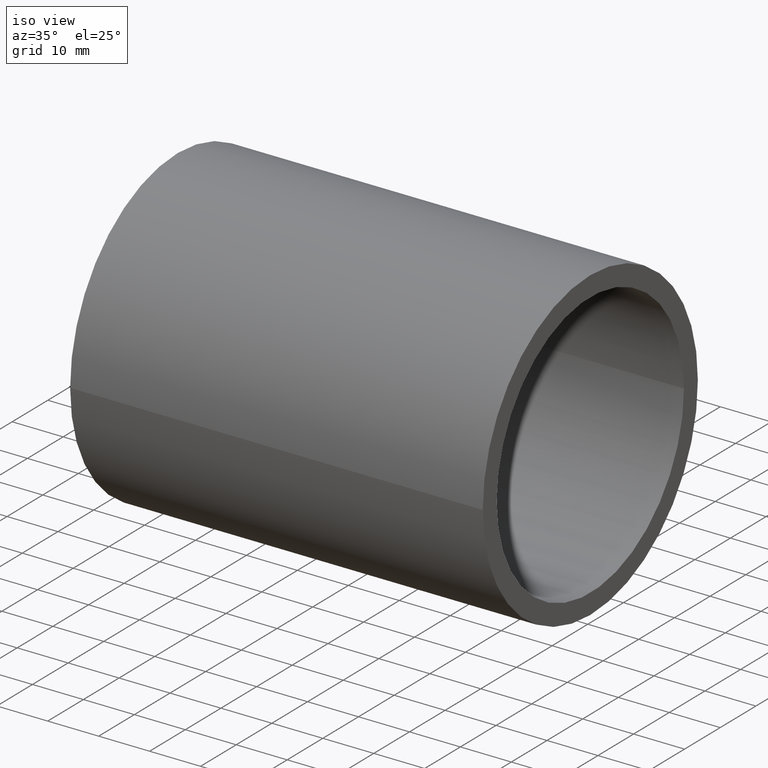
[diagram: clean part render]
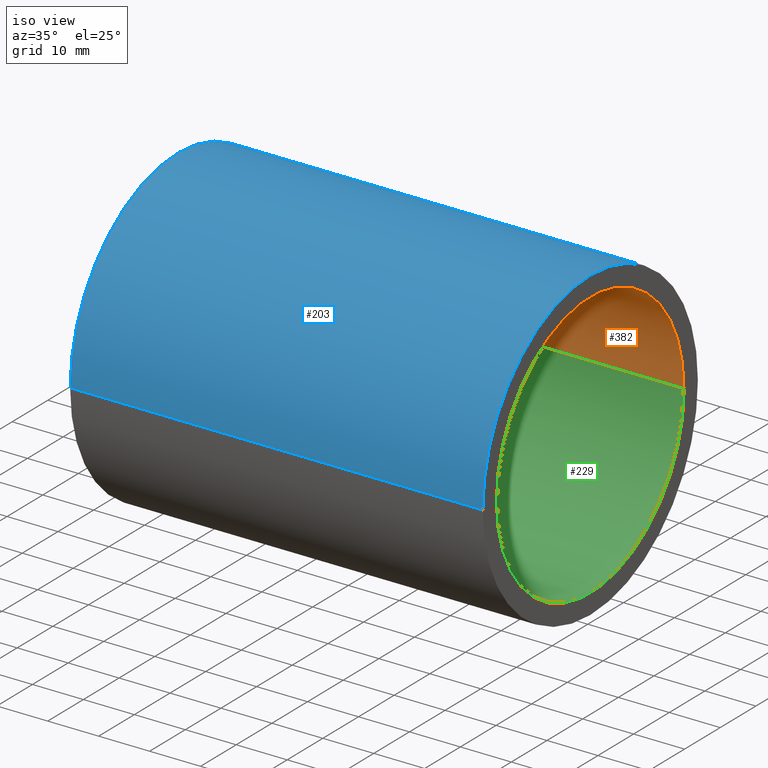
[diagram: same view with three faces highlighted in distinct colors, each labeled with its STEP entity id]
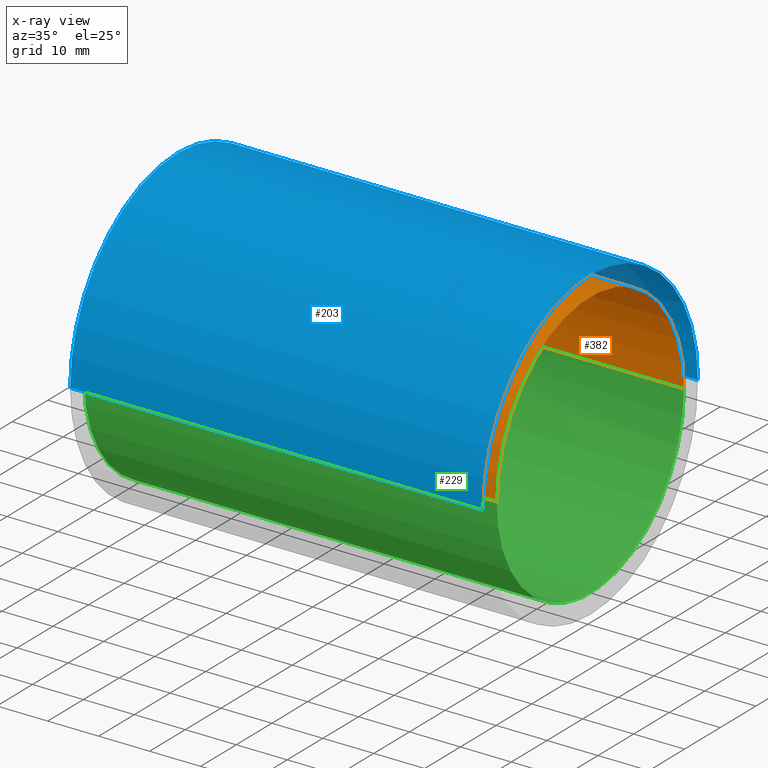
[diagram: x-ray of the same camera — body ghosted, the three highlighted faces saturated]
A machine part, iso view with three faces highlighted in distinct colors.
The next image is the same camera in x-ray (body ghosted, the three faces saturated) — at least one of them is partly hidden behind the body in this view.
Their STEP definitions:

[orange] entity #382 — the highlighted cylindrical surface (partial cylindrical patch) has radius 26.25 mm, axis along (1, 0, -0).
#3 = CARTESIAN_POINT ( 'NONE',  ( 40.49999999999999289, 26.25000000000001421, 0.000000000000000000 ) ) ;
#5 = CARTESIAN_POINT ( 'NONE',  ( 3.107388716256044514, 25.34594975676170847, 6.830444350759405481 ) ) ;
#8 = VERTEX_POINT ( 'NONE', #152 ) ;
#11 = CARTESIAN_POINT ( 'NONE',  ( 3.971717859397048134, 25.46659019787804468, 6.366690093564684183 ) ) ;
#15 = CARTESIAN_POINT ( 'NONE',  ( 4.949845040958535947, 25.63745304020012483, 5.639931906123011984 ) ) ;
#16 = CARTESIAN_POINT ( 'NONE',  ( 7.487977033579295671, 26.24655705374320647, 0.4912461484889982244 ) ) ;
#20 = CARTESIAN_POINT ( 'NONE',  ( 7.500000000000000000, 26.25000000000000355, -3.511471062450945916E-20 ) ) ;
#25 = EDGE_CURVE ( 'NONE', #238, #443, #404, .T. ) ;
#27 = CARTESIAN_POINT ( 'NONE',  ( -40.50000000000000711, 26.24999999999998934, 0.000000000000000000 ) ) ;
#31 = CARTESIAN_POINT ( 'NONE',  ( 9.184851921108029881E-16, 25.15576474687263797, 7.500000000000000000 ) ) ;
#35 = CARTESIAN_POINT ( 'NONE',  ( -0.4922419818676975201, 25.15576474687263442, 7.499999999999996447 ) ) ;
#39 = CYLINDRICAL_SURFACE ( 'NONE', #75, 26.25000000000000000 ) ;
#45 = CARTESIAN_POINT ( 'NONE',  ( 5.652275227240287414, 25.78072849040628611, 4.953963438185938983 ) ) ;
#51 = AXIS2_PLACEMENT_3D ( 'NONE', #164, #487, #412 ) ;
#53 = CARTESIAN_POINT ( 'NONE',  ( 4.571945044723190854, 25.56718040674281767, 5.950387915357894464 ) ) ;
#65 = CARTESIAN_POINT ( 'NONE',  ( -7.500000000000002665, 26.25000000000000711, 0.4984821498441855403 ) ) ;
#66 = VERTEX_POINT ( 'NONE', #179 ) ;
#71 = CARTESIAN_POINT ( 'NONE',  ( -3.327989891935563271, 25.37099409258889082, 6.738906710336570072 ) ) ;
#75 = AXIS2_PLACEMENT_3D ( 'NONE', #254, #407, #252 ) ;
#76 = EDGE_CURVE ( 'NONE', #499, #238, #91, .T. ) ;
#91 = B_SPLINE_CURVE_WITH_KNOTS ( 'NONE', 3,
 ( #206, #298, #501, #363, #370, #5, #493, #490, #11, #175, #53, #15, #328, #45, #129, #172, #250, #125, #134, #288, #331, #16, #209, #498 ),
 .UNSPECIFIED., .F., .F.,
 ( 4, 2, 2, 2, 2, 2, 2, 2, 2, 2, 2, 4 ),
 ( 0.01178926207537836848, 0.01326208531383623462, 0.01473490855229410076, 0.01547132017152303557, 0.01620773179075197037, 0.01694414340998090518, 0.01768055502920983652, 0.01915337826766770959, 0.02062620150612557574, 0.02209902474458345228, 0.02283543636381238362, 0.02357184798304132189 ),
 .UNSPECIFIED. ) ;
#98 = VECTOR ( 'NONE', #402, 1000.000000000000000 ) ;
#115 = CARTESIAN_POINT ( 'NONE',  ( -2.651657080710897230, 25.29414193850076131, 7.019851125143388160 ) ) ;
#117 = CARTESIAN_POINT ( 'NONE',  ( -0.9808088379908341814, 25.17022427966362486, 7.452009104841418541 ) ) ;
#118 = EDGE_LOOP ( 'NONE', ( #350, #374, #401, #170, #228, #173, #431 ) ) ;
#119 = CARTESIAN_POINT ( 'NONE',  ( -7.018475470088969104, 26.11633987092977449, 2.655443974424664066 ) ) ;
#125 = CARTESIAN_POINT ( 'NONE',  ( 7.114336110951199998, 26.14179627227647273, 2.424028184464290803 ) ) ;
#127 = DIRECTION ( 'NONE',  ( 1.000000000000000000, 3.061616997868382648E-16, -0.000000000000000000 ) ) ;
#129 = CARTESIAN_POINT ( 'NONE',  ( 5.960626149216632363, 25.85096129184256597, 4.578074141451656587 ) ) ;
#130 = FACE_OUTER_BOUND ( 'NONE', #118, .T. ) ;
#134 = CARTESIAN_POINT ( 'NONE',  ( 7.257158362495001569, 26.18148585191245559, 1.956305712048990619 ) ) ;
#151 = CARTESIAN_POINT ( 'NONE',  ( -1.950174968047167612, 25.23015299990416338, 7.246202063215121392 ) ) ;
#152 = CARTESIAN_POINT ( 'NONE',  ( -40.49999999999999289, -26.25000000000000711, 3.214697847761803556E-15 ) ) ;
#154 = CARTESIAN_POINT ( 'NONE',  ( -4.579823838683608983, 25.56606953501224311, 5.959714509959599837 ) ) ;
#159 = CARTESIAN_POINT ( 'NONE',  ( 40.50000000000000711, -26.24999999999998579, 3.214697847761801978E-15 ) ) ;
#161 = CARTESIAN_POINT ( 'NONE',  ( -5.472392848530915899, 25.74356638495870797, 5.134404946341746268 ) ) ;
#164 = CARTESIAN_POINT ( 'NONE',  ( -40.50000000000000000, -1.022580077288039749E-14, 0.000000000000000000 ) ) ;
#170 = ORIENTED_EDGE ( 'NONE', *, *, #272, .T. ) ;
#172 = CARTESIAN_POINT ( 'NONE',  ( 6.503291595215035414, 25.98145371594922892, 3.767628612663263876 ) ) ;
#173 = ORIENTED_EDGE ( 'NONE', *, *, #25, .T. ) ;
#175 = CARTESIAN_POINT ( 'NONE',  ( 4.376306223494449199, 25.53281672111011957, 6.095673001429120497 ) ) ;
#176 = AXIS2_PLACEMENT_3D ( 'NONE', #237, #394, #318 ) ;
#179 = CARTESIAN_POINT ( 'NONE',  ( -7.500000000000000000, 26.25000000000000000, -2.472637286832563698E-17 ) ) ;
#181 = DIRECTION ( 'NONE',  ( 1.000000000000000000, 3.061616997868382648E-16, -0.000000000000000000 ) ) ;
#192 = CARTESIAN_POINT ( 'NONE',  ( -1.708101661654081838, 25.21252738946488492, 7.307085269263294158 ) ) ;
#197 = CARTESIAN_POINT ( 'NONE',  ( -6.735174713920692113, 26.04115818748732636, 3.336007205501596573 ) ) ;
#206 = CARTESIAN_POINT ( 'NONE',  ( 9.184851921108029881E-16, 25.15576474687263797, 7.500000000000000000 ) ) ;
#209 = CARTESIAN_POINT ( 'NONE',  ( 7.500000000000000888, 26.25000000000000711, 0.2454883167530756138 ) ) ;
#217 = CARTESIAN_POINT ( 'NONE',  ( 9.184851921108029881E-16, 25.15576474687263797, 7.500000000000000000 ) ) ;
#226 = CARTESIAN_POINT ( 'NONE',  ( -40.50000000000000711, 26.24999999999998934, 0.000000000000000000 ) ) ;
#228 = ORIENTED_EDGE ( 'NONE', *, *, #76, .T. ) ;
#237 = CARTESIAN_POINT ( 'NONE',  ( 40.50000000000000000, 1.457329690985350156E-14, 0.000000000000000000 ) ) ;
#238 = VERTEX_POINT ( 'NONE', #20 ) ;
#244 = LINE ( 'NONE', #362, #98 ) ;
#250 = CARTESIAN_POINT ( 'NONE',  ( 6.738835609049517394, 26.04211280613417401, 3.328330748718893783 ) ) ;
#252 = DIRECTION ( 'NONE',  ( -2.643388153869420311E-16, 1.000000000000000000, 0.000000000000000000 ) ) ;
#254 = CARTESIAN_POINT ( 'NONE',  ( -40.50000000000000000, -1.022580077288039749E-14, 0.000000000000000000 ) ) ;
#271 = VERTEX_POINT ( 'NONE', #159 ) ;
#272 = EDGE_CURVE ( 'NONE', #66, #499, #379, .T. ) ;
#273 = CARTESIAN_POINT ( 'NONE',  ( -3.760398422462146506, 25.43206089508599632, 6.507871167896754905 ) ) ;
#275 = CARTESIAN_POINT ( 'NONE',  ( -2.421249021666196377, 25.27092963896449618, 7.102688217993333275 ) ) ;
#278 = CARTESIAN_POINT ( 'NONE',  ( -6.095874634240917800, 25.88348345119200999, 4.376096670775003084 ) ) ;
#281 = CIRCLE ( 'NONE', #51, 26.25000000000000000 ) ;
#288 = CARTESIAN_POINT ( 'NONE',  ( 7.402472689468249989, 26.22226039831832622, 1.230555958097135028 ) ) ;
#298 = CARTESIAN_POINT ( 'NONE',  ( 0.4919632290495392080, 25.15576474687263442, 7.500000000000000000 ) ) ;
#316 = CARTESIAN_POINT ( 'NONE',  ( -4.955966953346995219, 25.63709451859085675, 5.650237351122170182 ) ) ;
#318 = DIRECTION ( 'NONE',  ( 2.643388153869420311E-16, -1.000000000000000000, 0.000000000000000000 ) ) ;
#328 = CARTESIAN_POINT ( 'NONE',  ( 5.132964830283328617, 25.67354941397504930, 5.473816246359916704 ) ) ;
#329 = VERTEX_POINT ( 'NONE', #27 ) ;
#331 = CARTESIAN_POINT ( 'NONE',  ( 7.439369639669211054, 26.23273103883045110, 0.9833118519494521426 ) ) ;
#333 = CARTESIAN_POINT ( 'NONE',  ( -40.50000000000000711, 26.24999999999998934, 0.000000000000000000 ) ) ;
#348 = EDGE_CURVE ( 'NONE', #271, #443, #396, .T. ) ;
#350 = ORIENTED_EDGE ( 'NONE', *, *, #439, .F. ) ;
#352 = CARTESIAN_POINT ( 'NONE',  ( -7.500000000000000000, 26.25000000000000000, -2.472637286832563698E-17 ) ) ;
#355 = VECTOR ( 'NONE', #181, 1000.000000000000000 ) ;
#358 = CARTESIAN_POINT ( 'NONE',  ( -7.102726071837865973, 26.13917417762349871, 2.421224650953273994 ) ) ;
#362 = CARTESIAN_POINT ( 'NONE',  ( -40.49999999999999289, -26.25000000000001066, 3.214697847761801978E-15 ) ) ;
#363 = CARTESIAN_POINT ( 'NONE',  ( 1.955503778285107686, 25.22707080590904383, 7.257238911030132300 ) ) ;
#370 = CARTESIAN_POINT ( 'NONE',  ( 2.424162657630228868, 25.26824652294144258, 7.114546651775996544 ) ) ;
#374 = ORIENTED_EDGE ( 'NONE', *, *, #403, .T. ) ;
#375 = LINE ( 'NONE', #226, #355 ) ;
#379 = B_SPLINE_CURVE_WITH_KNOTS ( 'NONE', 3,
 ( #352, #65, #521, #485, #516, #358, #119, #197, #440, #278, #472, #524, #161, #316, #154, #273, #71, #115, #275, #151, #192, #117, #35, #31 ),
 .UNSPECIFIED., .F., .F.,
 ( 4, 2, 2, 2, 2, 2, 2, 2, 2, 2, 2, 4 ),
 ( 2.401109424688869196E-20, 0.001473657759422297361, 0.002210486639133445608, 0.002947315518844594289, 0.004420973278266892084, 0.005157802157978041632, 0.005894631037689191180, 0.007368288797111485940, 0.008841946556533780699, 0.009578775436244926778, 0.01031560431595607459, 0.01178926207537836848 ),
 .UNSPECIFIED. ) ;
#382 = ADVANCED_FACE ( 'NONE', ( #130 ), #39, .F. ) ;
#394 = DIRECTION ( 'NONE',  ( -1.000000000000000000, -3.061616997868382648E-16, 0.000000000000000000 ) ) ;
#396 = CIRCLE ( 'NONE', #176, 26.25000000000000000 ) ;
#401 = ORIENTED_EDGE ( 'NONE', *, *, #527, .T. ) ;
#402 = DIRECTION ( 'NONE',  ( 1.000000000000000000, 3.061616997868382648E-16, -0.000000000000000000 ) ) ;
#403 = EDGE_CURVE ( 'NONE', #8, #329, #281, .T. ) ;
#404 = LINE ( 'NONE', #333, #477 ) ;
#407 = DIRECTION ( 'NONE',  ( 1.000000000000000000, 3.061616997868382648E-16, -0.000000000000000000 ) ) ;
#412 = DIRECTION ( 'NONE',  ( 2.643388153869420311E-16, -1.000000000000000000, 0.000000000000000000 ) ) ;
#431 = ORIENTED_EDGE ( 'NONE', *, *, #348, .F. ) ;
#439 = EDGE_CURVE ( 'NONE', #8, #271, #244, .T. ) ;
#440 = CARTESIAN_POINT ( 'NONE',  ( -6.504407235292181788, 25.98172291303094639, 3.765942781147678442 ) ) ;
#443 = VERTEX_POINT ( 'NONE', #3 ) ;
#472 = CARTESIAN_POINT ( 'NONE',  ( -5.948343698780419686, 25.84902718059208127, 4.574653448903553077 ) ) ;
#477 = VECTOR ( 'NONE', #127, 1000.000000000000000 ) ;
#485 = CARTESIAN_POINT ( 'NONE',  ( -7.306580559343885284, 26.19535245757309383, 1.709997413816759515 ) ) ;
#487 = DIRECTION ( 'NONE',  ( -1.000000000000000000, -3.061616997868382648E-16, 0.000000000000000000 ) ) ;
#490 = CARTESIAN_POINT ( 'NONE',  ( 3.762768565915440178, 25.43472580024818441, 6.492422099545622771 ) ) ;
#493 = CARTESIAN_POINT ( 'NONE',  ( 3.331220906173984364, 25.37447303844751190, 6.724056757165206122 ) ) ;
#498 = CARTESIAN_POINT ( 'NONE',  ( 7.500000000000000000, 26.25000000000000355, -3.511471062450945916E-20 ) ) ;
#499 = VERTEX_POINT ( 'NONE', #217 ) ;
#501 = CARTESIAN_POINT ( 'NONE',  ( 0.9917866897664961989, 25.17071209277677823, 7.450360447700447253 ) ) ;
#516 = CARTESIAN_POINT ( 'NONE',  ( -7.246680038039598593, 26.17865696727574587, 1.948505809133644684 ) ) ;
#521 = CARTESIAN_POINT ( 'NONE',  ( -7.450801712308027902, 26.23582340581914352, 0.9881276970289141204 ) ) ;
#524 = CARTESIAN_POINT ( 'NONE',  ( -5.636506284883211926, 25.77905383298028497, 4.953790855179288855 ) ) ;
#527 = EDGE_CURVE ( 'NONE', #329, #66, #375, .T. ) ;

[blue] entity #203 — the highlighted cylindrical surface (partial cylindrical patch) has radius 30.15 mm, axis along (1, 0, -0).
#10 = CARTESIAN_POINT ( 'NONE',  ( 7.402591408172828125, 30.12588033472438553, 1.229742287648331933 ) ) ;
#24 = CARTESIAN_POINT ( 'NONE',  ( -7.500000000000004441, 30.15000000000000213, 0.4977798491282845461 ) ) ;
#26 = CARTESIAN_POINT ( 'NONE',  ( -7.019421004381487528, 30.03391983532719678, 2.652946144464616740 ) ) ;
#29 = EDGE_CURVE ( 'NONE', #414, #38, #406, .T. ) ;
#32 = B_SPLINE_CURVE_WITH_KNOTS ( 'NONE', 3,
 ( #268, #24, #182, #64, #419, #189, #26, #514, #147, #230, #386, #137, #460, #507, #303, #340, #280, #190, #311, #37, #347, #437, #78, #239 ),
 .UNSPECIFIED., .F., .F.,
 ( 4, 2, 2, 2, 2, 2, 2, 2, 2, 2, 2, 4 ),
 ( 6.055894841786311079E-19, 0.001471713851614921088, 0.002207570777422380656, 0.002943427703229840008, 0.004415141554844758710, 0.005150998480652219796, 0.005886855406459680015, 0.007358569258074600453, 0.008830283109689519155, 0.009566140035496977639, 0.01030199696130443612, 0.01177371081291935309 ),
 .UNSPECIFIED. ) ;
#37 = CARTESIAN_POINT ( 'NONE',  ( -1.948475690276917360, 29.26625992275815236, 7.246652333023240189 ) ) ;
#38 = VERTEX_POINT ( 'NONE', #408 ) ;
#42 = DIRECTION ( 'NONE',  ( -1.000000000000000000, -3.061616997868382648E-16, 0.000000000000000000 ) ) ;
#46 = CARTESIAN_POINT ( 'NONE',  ( 0.4912365799460749471, 29.20226874747919510, 7.499999999999998224 ) ) ;
#48 = CARTESIAN_POINT ( 'NONE',  ( 40.49999999999999289, 30.15000000000001634, 0.000000000000000000 ) ) ;
#49 = DIRECTION ( 'NONE',  ( 1.000000000000000000, 3.061616997868382648E-16, -0.000000000000000000 ) ) ;
#58 = CARTESIAN_POINT ( 'NONE',  ( -40.50000000000000711, 30.14999999999998792, 0.000000000000000000 ) ) ;
#64 = CARTESIAN_POINT ( 'NONE',  ( -7.307030583747838648, 30.10254195543210898, 1.708038133804885339 ) ) ;
#70 = ORIENTED_EDGE ( 'NONE', *, *, #178, .F. ) ;
#78 = CARTESIAN_POINT ( 'NONE',  ( -0.4914981277863440523, 29.20226874747919510, 7.499999999999998224 ) ) ;
#83 = CARTESIAN_POINT ( 'NONE',  ( 2.421837460762274574, 29.29902194155838657, 7.115302828821279846 ) ) ;
#84 = EDGE_CURVE ( 'NONE', #414, #491, #285, .T. ) ;
#92 = CARTESIAN_POINT ( 'NONE',  ( 7.500000000000000888, 30.15000000000000568, 0.2452510371018872537 ) ) ;
#95 = CARTESIAN_POINT ( 'NONE',  ( 4.375047410893810884, 29.52750182852797778, 6.096583708591910344 ) ) ;
#102 = CYLINDRICAL_SURFACE ( 'NONE', #497, 30.14999999999999858 ) ;
#126 = CARTESIAN_POINT ( 'NONE',  ( 0.9903514444054488663, 29.21509827629692069, 7.450530917942700171 ) ) ;
#128 = CARTESIAN_POINT ( 'NONE',  ( 5.961464549158439041, 29.80337492193547178, 4.576993505707772414 ) ) ;
#137 = CARTESIAN_POINT ( 'NONE',  ( -5.637319221159425631, 29.74102230381066647, 4.952887269354030231 ) ) ;
#140 = EDGE_CURVE ( 'NONE', #491, #361, #425, .T. ) ;
#143 = DIRECTION ( 'NONE',  ( 2.301457347896261609E-16, -1.000000000000000000, 0.000000000000000000 ) ) ;
#145 = DIRECTION ( 'NONE',  ( 1.000000000000000000, 3.061616997868382648E-16, -0.000000000000000000 ) ) ;
#147 = CARTESIAN_POINT ( 'NONE',  ( -6.505634617147438625, 29.91696588354454533, 3.763845714519531871 ) ) ;
#156 = VECTOR ( 'NONE', #461, 1000.000000000000000 ) ;
#174 = CARTESIAN_POINT ( 'NONE',  ( 7.439412463744210058, 30.13497641939341065, 0.9829913012394488891 ) ) ;
#177 = CARTESIAN_POINT ( 'NONE',  ( 3.104462180835961593, 29.36594810224306684, 6.831765681418321634 ) ) ;
#178 = EDGE_CURVE ( 'NONE', #38, #315, #186, .T. ) ;
#182 = CARTESIAN_POINT ( 'NONE',  ( -7.450937842631350172, 30.13768935472081267, 0.9868566961194560339 ) ) ;
#186 = LINE ( 'NONE', #512, #373 ) ;
#188 = EDGE_CURVE ( 'NONE', #296, #361, #429, .T. ) ;
#189 = CARTESIAN_POINT ( 'NONE',  ( -7.103575669927350233, 30.05375883820808980, 2.418709507118506519 ) ) ;
#190 = CARTESIAN_POINT ( 'NONE',  ( -2.649571510705720723, 29.32136355497509683, 7.020640179147966897 ) ) ;
#199 = AXIS2_PLACEMENT_3D ( 'NONE', #336, #337, #143 ) ;
#202 = CARTESIAN_POINT ( 'NONE',  ( 6.739564159734181992, 29.96933153080855305, 3.326924869746755054 ) ) ;
#203 = ADVANCED_FACE ( 'NONE', ( #300 ), #102, .T. ) ;
#205 = CARTESIAN_POINT ( 'NONE',  ( 3.970098787717640132, 29.47022240788812653, 6.367706681309988070 ) ) ;
#210 = CARTESIAN_POINT ( 'NONE',  ( 1.953505448120328447, 29.26358410800164478, 7.257756086203244195 ) ) ;
#212 = CARTESIAN_POINT ( 'NONE',  ( 6.504087766042523810, 29.91663842805477103, 3.766267575966940839 ) ) ;
#213 = CARTESIAN_POINT ( 'NONE',  ( -40.50000000000000000, -1.022580077288039749E-14, 0.000000000000000000 ) ) ;
#230 = CARTESIAN_POINT ( 'NONE',  ( -6.097133101349402118, 29.83169117787166869, 4.374348183222612541 ) ) ;
#239 = CARTESIAN_POINT ( 'NONE',  ( 9.184852138581204232E-16, 29.20226874747919510, 7.500000000000000000 ) ) ;
#243 = VERTEX_POINT ( 'NONE', #426 ) ;
#246 = CARTESIAN_POINT ( 'NONE',  ( 5.131943926652757781, 29.64928625183236122, 5.474803640274430450 ) ) ;
#258 = DIRECTION ( 'NONE',  ( -2.301457347896261609E-16, 1.000000000000000000, 0.000000000000000000 ) ) ;
#266 = EDGE_CURVE ( 'NONE', #315, #243, #32, .T. ) ;
#268 = CARTESIAN_POINT ( 'NONE',  ( -7.500000000000000000, 30.14999999999999858, 6.235175805712512231E-16 ) ) ;
#280 = CARTESIAN_POINT ( 'NONE',  ( -3.326114416452000899, 29.38765154349772502, 6.739839297068670021 ) ) ;
#285 = LINE ( 'NONE', #291, #474 ) ;
#287 = CARTESIAN_POINT ( 'NONE',  ( 3.760902486803406219, 29.44267094097436299, 6.493515011038175189 ) ) ;
#289 = CARTESIAN_POINT ( 'NONE',  ( 4.948790345394321832, 29.61803894572666707, 5.640858275763892316 ) ) ;
#291 = CARTESIAN_POINT ( 'NONE',  ( -40.49999999999999289, -30.15000000000000924, 3.692310099429270397E-15 ) ) ;
#296 = VERTEX_POINT ( 'NONE', #388 ) ;
#300 = FACE_OUTER_BOUND ( 'NONE', #411, .T. ) ;
#303 = CARTESIAN_POINT ( 'NONE',  ( -4.579325986222701594, 29.55635505909321026, 5.960105699942596758 ) ) ;
#305 = CARTESIAN_POINT ( 'NONE',  ( -40.50000000000000000, -1.022580077288039749E-14, 0.000000000000000000 ) ) ;
#311 = CARTESIAN_POINT ( 'NONE',  ( -2.419201632628013687, 29.30136428376927071, 7.103378844747139986 ) ) ;
#315 = VERTEX_POINT ( 'NONE', #397 ) ;
#323 = AXIS2_PLACEMENT_3D ( 'NONE', #213, #42, #376 ) ;
#330 = CARTESIAN_POINT ( 'NONE',  ( 7.488000471204768971, 30.14700809447676022, 0.4908957600777332786 ) ) ;
#336 = CARTESIAN_POINT ( 'NONE',  ( 40.50000000000000000, 1.457329690985350156E-14, 0.000000000000000000 ) ) ;
#337 = DIRECTION ( 'NONE',  ( -1.000000000000000000, -3.061616997868382648E-16, 0.000000000000000000 ) ) ;
#340 = CARTESIAN_POINT ( 'NONE',  ( -3.759673113302224756, 29.44049999252692018, 6.508298128058910059 ) ) ;
#347 = CARTESIAN_POINT ( 'NONE',  ( -1.706680834759862098, 29.25109693381486409, 7.307414262249330328 ) ) ;
#356 = ORIENTED_EDGE ( 'NONE', *, *, #188, .F. ) ;
#360 = CARTESIAN_POINT ( 'NONE',  ( 7.257696053612322729, 30.09049480400307175, 1.954060028484029488 ) ) ;
#361 = VERTEX_POINT ( 'NONE', #48 ) ;
#366 = EDGE_CURVE ( 'NONE', #243, #296, #475, .T. ) ;
#367 = CARTESIAN_POINT ( 'NONE',  ( 7.115179820092397023, 30.05602919902415238, 2.421646192131075015 ) ) ;
#369 = CARTESIAN_POINT ( 'NONE',  ( 3.328729282496044384, 29.39059242783988424, 6.725301932082715872 ) ) ;
#371 = CARTESIAN_POINT ( 'NONE',  ( -40.49999999999999289, -30.15000000000000924, 3.692310099429271974E-15 ) ) ;
#373 = VECTOR ( 'NONE', #145, 1000.000000000000000 ) ;
#376 = DIRECTION ( 'NONE',  ( 2.301457347896261609E-16, -1.000000000000000000, 0.000000000000000000 ) ) ;
#377 = ORIENTED_EDGE ( 'NONE', *, *, #366, .F. ) ;
#385 = ORIENTED_EDGE ( 'NONE', *, *, #140, .T. ) ;
#386 = CARTESIAN_POINT ( 'NONE',  ( -5.949624851526785996, 29.80179651545214625, 4.573010434087986020 ) ) ;
#388 = CARTESIAN_POINT ( 'NONE',  ( 7.500000000000000000, 30.15000000000000213, -7.042154990020730619E-21 ) ) ;
#397 = CARTESIAN_POINT ( 'NONE',  ( -7.500000000000000000, 30.14999999999999858, 6.235175805712512231E-16 ) ) ;
#406 = CIRCLE ( 'NONE', #323, 30.14999999999999858 ) ;
#408 = CARTESIAN_POINT ( 'NONE',  ( -40.50000000000000711, 30.14999999999998792, 0.000000000000000000 ) ) ;
#411 = EDGE_LOOP ( 'NONE', ( #525, #444, #385, #356, #377, #481, #70 ) ) ;
#414 = VERTEX_POINT ( 'NONE', #371 ) ;
#419 = CARTESIAN_POINT ( 'NONE',  ( -7.247253648970237272, 30.08804278213023764, 1.946344657478941587 ) ) ;
#420 = CARTESIAN_POINT ( 'NONE',  ( 40.50000000000000711, -30.14999999999998437, 3.692310099429270397E-15 ) ) ;
#425 = CIRCLE ( 'NONE', #199, 30.14999999999999858 ) ;
#426 = CARTESIAN_POINT ( 'NONE',  ( 9.184852138581204232E-16, 29.20226874747919510, 7.500000000000000000 ) ) ;
#429 = LINE ( 'NONE', #58, #156 ) ;
#437 = CARTESIAN_POINT ( 'NONE',  ( -0.9796219613600889442, 29.21468481134047224, 7.452153480724028611 ) ) ;
#444 = ORIENTED_EDGE ( 'NONE', *, *, #84, .T. ) ;
#454 = CARTESIAN_POINT ( 'NONE',  ( 4.570799395106203811, 29.55723113246937572, 5.951268844508604161 ) ) ;
#460 = CARTESIAN_POINT ( 'NONE',  ( -5.472965854307600964, 29.71021865610426715, 5.133809976899567751 ) ) ;
#461 = DIRECTION ( 'NONE',  ( 1.000000000000000000, 3.061616997868382648E-16, -0.000000000000000000 ) ) ;
#464 = DIRECTION ( 'NONE',  ( 1.000000000000000000, 3.061616997868382648E-16, -0.000000000000000000 ) ) ;
#474 = VECTOR ( 'NONE', #49, 1000.000000000000000 ) ;
#475 = B_SPLINE_CURVE_WITH_KNOTS ( 'NONE', 3,
 ( #500, #46, #126, #210, #83, #177, #369, #287, #205, #95, #454, #289, #246, #492, #128, #212, #202, #367, #360, #10, #174, #330, #92, #495 ),
 .UNSPECIFIED., .F., .F.,
 ( 4, 2, 2, 2, 2, 2, 2, 2, 2, 2, 2, 4 ),
 ( 0.01177371081291935309, 0.01324464150065708494, 0.01471557218839481679, 0.01545103753226368185, 0.01618650287613254690, 0.01692196822000141543, 0.01765743356387028049, 0.01912836425160801407, 0.02059929493934574418, 0.02207022562708347430, 0.02280569097095234282, 0.02354115631482120788 ),
 .UNSPECIFIED. ) ;
#481 = ORIENTED_EDGE ( 'NONE', *, *, #266, .F. ) ;
#491 = VERTEX_POINT ( 'NONE', #420 ) ;
#492 = CARTESIAN_POINT ( 'NONE',  ( 5.652737261603171248, 29.74238130439229977, 4.953569916208335755 ) ) ;
#495 = CARTESIAN_POINT ( 'NONE',  ( 7.500000000000000000, 30.15000000000000213, -7.042154990020730619E-21 ) ) ;
#497 = AXIS2_PLACEMENT_3D ( 'NONE', #305, #464, #258 ) ;
#500 = CARTESIAN_POINT ( 'NONE',  ( 9.184852138581204232E-16, 29.20226874747919510, 7.500000000000000000 ) ) ;
#507 = CARTESIAN_POINT ( 'NONE',  ( -4.955865628270547774, 29.61786713336918808, 5.650383735627918291 ) ) ;
#512 = CARTESIAN_POINT ( 'NONE',  ( -40.50000000000000711, 30.14999999999998792, 0.000000000000000000 ) ) ;
#514 = CARTESIAN_POINT ( 'NONE',  ( -6.736327455849616008, 29.96859832132401991, 3.333687198327586643 ) ) ;
#525 = ORIENTED_EDGE ( 'NONE', *, *, #29, .F. ) ;

[green] entity #229 — the highlighted cylindrical surface (partial cylindrical patch) has radius 26.25 mm, axis along (1, 0, -0).
#2 = CARTESIAN_POINT ( 'NONE',  ( -4.579903335156499722, 25.56608613179639633, -5.959639453293601896 ) ) ;
#3 = CARTESIAN_POINT ( 'NONE',  ( 40.49999999999999289, 26.25000000000001421, 0.000000000000000000 ) ) ;
#8 = VERTEX_POINT ( 'NONE', #152 ) ;
#9 = EDGE_CURVE ( 'NONE', #326, #66, #321, .T. ) ;
#17 = CARTESIAN_POINT ( 'NONE',  ( -40.50000000000000000, -1.022580077288039749E-14, 0.000000000000000000 ) ) ;
#20 = CARTESIAN_POINT ( 'NONE',  ( 7.500000000000000000, 26.25000000000000355, -3.511471062450945916E-20 ) ) ;
#25 = EDGE_CURVE ( 'NONE', #238, #443, #404, .T. ) ;
#27 = CARTESIAN_POINT ( 'NONE',  ( -40.50000000000000711, 26.24999999999998934, 0.000000000000000000 ) ) ;
#36 = CARTESIAN_POINT ( 'NONE',  ( -0.9827970735371619471, 25.17034453724676624, -7.451596438295246649 ) ) ;
#50 = DIRECTION ( 'NONE',  ( 2.643388153869420311E-16, -1.000000000000000000, 0.000000000000000000 ) ) ;
#55 = FACE_OUTER_BOUND ( 'NONE', #251, .T. ) ;
#66 = VERTEX_POINT ( 'NONE', #179 ) ;
#68 = CARTESIAN_POINT ( 'NONE',  ( 6.502838091917040764, 25.98133293172737268, -3.768555564700479810 ) ) ;
#73 = CARTESIAN_POINT ( 'NONE',  ( 0.2472253279926478475, 25.15576474687263442, -7.500000000000001776 ) ) ;
#74 = CARTESIAN_POINT ( 'NONE',  ( -5.948072239823869012, 25.84896697505297425, -4.574973492457397484 ) ) ;
#90 = ORIENTED_EDGE ( 'NONE', *, *, #9, .T. ) ;
#93 = CARTESIAN_POINT ( 'NONE',  ( -7.500000000000000000, 26.25000000000000000, -2.472637286832563698E-17 ) ) ;
#98 = VECTOR ( 'NONE', #402, 1000.000000000000000 ) ;
#99 = CARTESIAN_POINT ( 'NONE',  ( 40.50000000000000000, 1.457329690985350156E-14, 0.000000000000000000 ) ) ;
#107 = CYLINDRICAL_SURFACE ( 'NONE', #496, 26.25000000000000000 ) ;
#110 = CARTESIAN_POINT ( 'NONE',  ( -40.50000000000000000, -1.022580077288039749E-14, 0.000000000000000000 ) ) ;
#112 = CARTESIAN_POINT ( 'NONE',  ( 0.9891199589479016119, 25.17400258290893689, -7.438598432425705731 ) ) ;
#116 = ORIENTED_EDGE ( 'NONE', *, *, #527, .F. ) ;
#121 = CARTESIAN_POINT ( 'NONE',  ( 5.131091192824399627, 25.67317585531111135, -5.475558680940058487 ) ) ;
#127 = DIRECTION ( 'NONE',  ( 1.000000000000000000, 3.061616997868382648E-16, -0.000000000000000000 ) ) ;
#142 = B_SPLINE_CURVE_WITH_KNOTS ( 'NONE', 3,
 ( #200, #442, #313, #270, #430, #434, #68, #234, #526, #121, #231, #149, #399, #310, #241, #471, #349, #480, #112, #194, #73, #482 ),
 .UNSPECIFIED., .F., .F.,
 ( 4, 2, 2, 2, 2, 2, 2, 2, 2, 2, 4 ),
 ( 0.02357184798304132189, 0.02504482827649811075, 0.02651780856995489960, 0.02799078886341169192, 0.02946376915686848078, 0.03020025930359687000, 0.03093674945032526269, 0.03240972974378204807, 0.03388271003723883346, 0.03461920018396722615, 0.03535569033069561884 ),
 .UNSPECIFIED. ) ;
#149 = CARTESIAN_POINT ( 'NONE',  ( 4.569296284959222909, 25.56670458494726006, -5.952435787678063583 ) ) ;
#152 = CARTESIAN_POINT ( 'NONE',  ( -40.49999999999999289, -26.25000000000000711, 3.214697847761803556E-15 ) ) ;
#155 = CARTESIAN_POINT ( 'NONE',  ( -2.421181315831954617, 25.27091214638346983, -7.102753916822598157 ) ) ;
#159 = CARTESIAN_POINT ( 'NONE',  ( 40.50000000000000711, -26.24999999999998579, 3.214697847761801978E-15 ) ) ;
#163 = CARTESIAN_POINT ( 'NONE',  ( -7.257774706203148796, 26.18165786326593292, -1.953695245823923399 ) ) ;
#165 = CARTESIAN_POINT ( 'NONE',  ( -6.095777443094966053, 25.88345997311688151, -4.376244098658888859 ) ) ;
#179 = CARTESIAN_POINT ( 'NONE',  ( -7.500000000000000000, 26.25000000000000000, -2.472637286832563698E-17 ) ) ;
#181 = DIRECTION ( 'NONE',  ( 1.000000000000000000, 3.061616997868382648E-16, -0.000000000000000000 ) ) ;
#193 = ORIENTED_EDGE ( 'NONE', *, *, #439, .T. ) ;
#194 = CARTESIAN_POINT ( 'NONE',  ( 0.4971646518725960640, 25.15947575849282813, -7.487585207595549797 ) ) ;
#195 = ORIENTED_EDGE ( 'NONE', *, *, #290, .T. ) ;
#196 = EDGE_CURVE ( 'NONE', #443, #271, #451, .T. ) ;
#198 = CARTESIAN_POINT ( 'NONE',  ( -2.652376838847326557, 25.29421346542874005, -7.019596699871498480 ) ) ;
#200 = CARTESIAN_POINT ( 'NONE',  ( 7.500000000000000000, 26.25000000000000355, -3.511471062450945916E-20 ) ) ;
#201 = CARTESIAN_POINT ( 'NONE',  ( -7.111477267143985870, 26.14101493566436929, -2.432393457438694728 ) ) ;
#204 = CARTESIAN_POINT ( 'NONE',  ( -0.4943570307307177392, 25.15576474687263797, -7.499999999999995559 ) ) ;
#207 = AXIS2_PLACEMENT_3D ( 'NONE', #17, #262, #50 ) ;
#222 = DIRECTION ( 'NONE',  ( -1.000000000000000000, -3.061616997868382648E-16, 0.000000000000000000 ) ) ;
#224 = AXIS2_PLACEMENT_3D ( 'NONE', #99, #222, #466 ) ;
#226 = CARTESIAN_POINT ( 'NONE',  ( -40.50000000000000711, 26.24999999999998934, 0.000000000000000000 ) ) ;
#229 = ADVANCED_FACE ( 'NONE', ( #55 ), #107, .F. ) ;
#231 = CARTESIAN_POINT ( 'NONE',  ( 4.947834362180802081, 25.63706261781558737, -5.641710332035456688 ) ) ;
#234 = CARTESIAN_POINT ( 'NONE',  ( 5.958702181121629415, 25.85051042712459335, -4.580696738556101266 ) ) ;
#235 = ORIENTED_EDGE ( 'NONE', *, *, #483, .T. ) ;
#238 = VERTEX_POINT ( 'NONE', #20 ) ;
#240 = CARTESIAN_POINT ( 'NONE',  ( -6.504666169006426024, 25.98178539182808677, -3.765551515641766489 ) ) ;
#241 = CARTESIAN_POINT ( 'NONE',  ( 3.336903712867457905, 25.37205129682716986, -6.735011455655118162 ) ) ;
#242 = CARTESIAN_POINT ( 'NONE',  ( -3.760778865241900970, 25.43211951867764498, -6.507638534782119955 ) ) ;
#244 = LINE ( 'NONE', #362, #98 ) ;
#251 = EDGE_LOOP ( 'NONE', ( #235, #193, #312, #528, #195, #90, #116 ) ) ;
#262 = DIRECTION ( 'NONE',  ( -1.000000000000000000, -3.061616997868382648E-16, 0.000000000000000000 ) ) ;
#263 = CIRCLE ( 'NONE', #207, 26.25000000000000000 ) ;
#265 = DIRECTION ( 'NONE',  ( 1.000000000000000000, 3.061616997868382648E-16, -0.000000000000000000 ) ) ;
#270 = CARTESIAN_POINT ( 'NONE',  ( 7.257277636060105230, 26.18151741334061811, -1.956668206904704777 ) ) ;
#271 = VERTEX_POINT ( 'NONE', #159 ) ;
#274 = CARTESIAN_POINT ( 'NONE',  ( -1.947735837013394811, 25.22995355994306976, -7.246899838985373599 ) ) ;
#279 = CARTESIAN_POINT ( 'NONE',  ( -5.473215141363364289, 25.74374231748057440, -5.133518889159716991 ) ) ;
#290 = EDGE_CURVE ( 'NONE', #238, #326, #142, .T. ) ;
#310 = CARTESIAN_POINT ( 'NONE',  ( 3.766875539182513499, 25.43310176885900731, -6.503650199933537657 ) ) ;
#312 = ORIENTED_EDGE ( 'NONE', *, *, #196, .F. ) ;
#313 = CARTESIAN_POINT ( 'NONE',  ( 7.451909229691762171, 26.23613398627482951, -0.9826891630645817610 ) ) ;
#317 = CARTESIAN_POINT ( 'NONE',  ( -3.330054538670339070, 25.37124929892515368, -6.737959607023729092 ) ) ;
#319 = CARTESIAN_POINT ( 'NONE',  ( -7.450844507436339192, 26.23583424740114367, -0.9885013533440147881 ) ) ;
#321 = B_SPLINE_CURVE_WITH_KNOTS ( 'NONE', 3,
 ( #486, #204, #36, #473, #274, #155, #198, #317, #242, #2, #484, #279, #441, #74, #165, #240, #398, #201, #163, #319, #413, #93 ),
 .UNSPECIFIED., .F., .F.,
 ( 4, 2, 2, 2, 2, 2, 2, 2, 2, 2, 4 ),
 ( 0.03535569033069561884, 0.03682839171228600300, 0.03756474240308119161, 0.03830109309387638716, 0.03977379447546676439, 0.04124649585705714855, 0.04198284654785234410, 0.04271919723864753271, 0.04419189862023791687, 0.04566460000182830103, 0.04713730138341867826 ),
 .UNSPECIFIED. ) ;
#326 = VERTEX_POINT ( 'NONE', #354 ) ;
#329 = VERTEX_POINT ( 'NONE', #27 ) ;
#333 = CARTESIAN_POINT ( 'NONE',  ( -40.50000000000000711, 26.24999999999998934, 0.000000000000000000 ) ) ;
#349 = CARTESIAN_POINT ( 'NONE',  ( 1.952806834923295431, 25.22688913058311400, -7.257865033384999442 ) ) ;
#354 = CARTESIAN_POINT ( 'NONE',  ( -8.321471083483726222E-14, 25.15576474687262731, -7.500000000000054179 ) ) ;
#355 = VECTOR ( 'NONE', #181, 1000.000000000000000 ) ;
#362 = CARTESIAN_POINT ( 'NONE',  ( -40.49999999999999289, -26.25000000000001066, 3.214697847761801978E-15 ) ) ;
#375 = LINE ( 'NONE', #226, #355 ) ;
#378 = DIRECTION ( 'NONE',  ( -2.643388153869420311E-16, 1.000000000000000000, 0.000000000000000000 ) ) ;
#398 = CARTESIAN_POINT ( 'NONE',  ( -6.734953416780440349, 26.04110501633378760, -3.336172856237178852 ) ) ;
#399 = CARTESIAN_POINT ( 'NONE',  ( 4.373518834484792173, 25.53233970007361009, -6.097666546893452555 ) ) ;
#402 = DIRECTION ( 'NONE',  ( 1.000000000000000000, 3.061616997868382648E-16, -0.000000000000000000 ) ) ;
#404 = LINE ( 'NONE', #333, #477 ) ;
#413 = CARTESIAN_POINT ( 'NONE',  ( -7.500000000000002665, 26.25000000000001066, -0.4981586437419930347 ) ) ;
#430 = CARTESIAN_POINT ( 'NONE',  ( 7.113764799129464578, 26.14164054548023586, -2.425673381592652333 ) ) ;
#434 = CARTESIAN_POINT ( 'NONE',  ( 6.738190706299289623, 26.04194567973408780, -3.329613637802817827 ) ) ;
#439 = EDGE_CURVE ( 'NONE', #8, #271, #244, .T. ) ;
#441 = CARTESIAN_POINT ( 'NONE',  ( -5.637024880960940898, 25.77916949429884497, -4.953170330028883406 ) ) ;
#442 = CARTESIAN_POINT ( 'NONE',  ( 7.500000000000000000, 26.25000000000001421, -0.4910289889637706184 ) ) ;
#443 = VERTEX_POINT ( 'NONE', #3 ) ;
#451 = CIRCLE ( 'NONE', #224, 26.25000000000000000 ) ;
#466 = DIRECTION ( 'NONE',  ( 2.643388153869420311E-16, -1.000000000000000000, 0.000000000000000000 ) ) ;
#471 = CARTESIAN_POINT ( 'NONE',  ( 2.422257476700824252, 25.26803102545416024, -7.115333752770931497 ) ) ;
#473 = CARTESIAN_POINT ( 'NONE',  ( -1.706745254172269632, 25.21244618976168184, -7.307363787926693277 ) ) ;
#477 = VECTOR ( 'NONE', #127, 1000.000000000000000 ) ;
#480 = CARTESIAN_POINT ( 'NONE',  ( 1.232170653598444021, 25.18478190669201666, -7.402146332297798281 ) ) ;
#482 = CARTESIAN_POINT ( 'NONE',  ( -8.321471083483726222E-14, 25.15576474687262731, -7.500000000000054179 ) ) ;
#483 = EDGE_CURVE ( 'NONE', #329, #8, #263, .T. ) ;
#484 = CARTESIAN_POINT ( 'NONE',  ( -4.957311378008077973, 25.63735895522961883, -5.649023329524049508 ) ) ;
#486 = CARTESIAN_POINT ( 'NONE',  ( -8.321471083483726222E-14, 25.15576474687262731, -7.500000000000054179 ) ) ;
#496 = AXIS2_PLACEMENT_3D ( 'NONE', #110, #265, #378 ) ;
#526 = CARTESIAN_POINT ( 'NONE',  ( 5.649939446851028002, 25.78022037197665028, -4.956565649409816032 ) ) ;
#527 = EDGE_CURVE ( 'NONE', #329, #66, #375, .T. ) ;
#528 = ORIENTED_EDGE ( 'NONE', *, *, #25, .F. ) ;